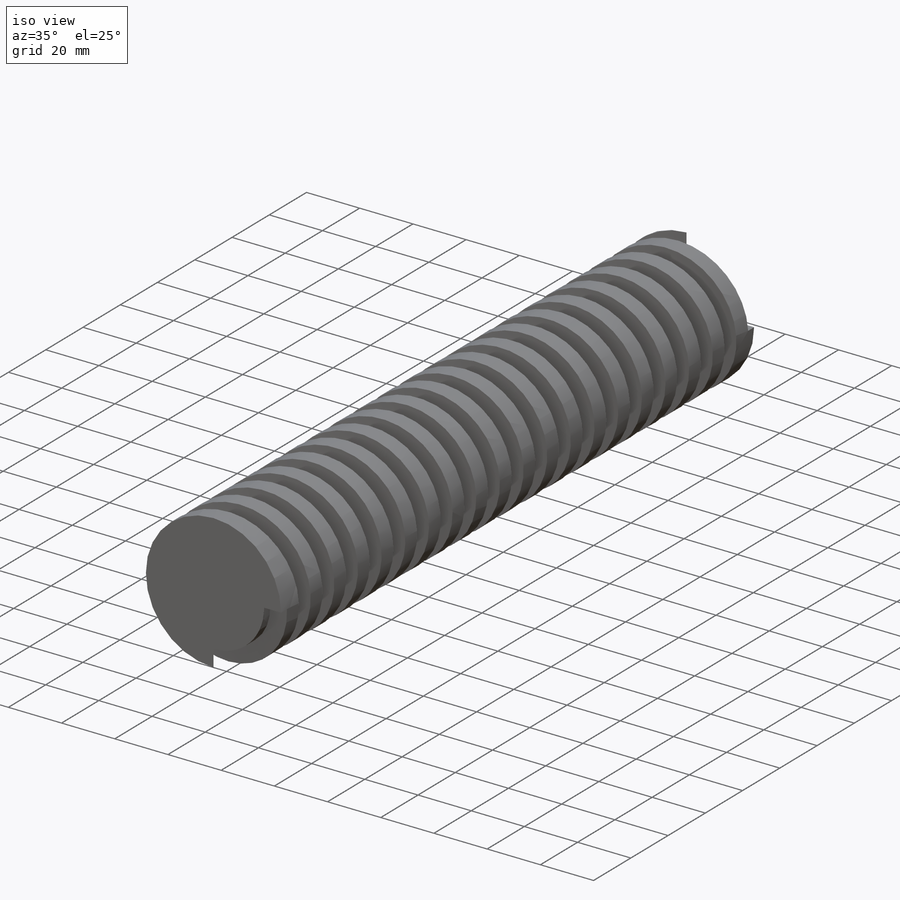
[diagram: iso view]
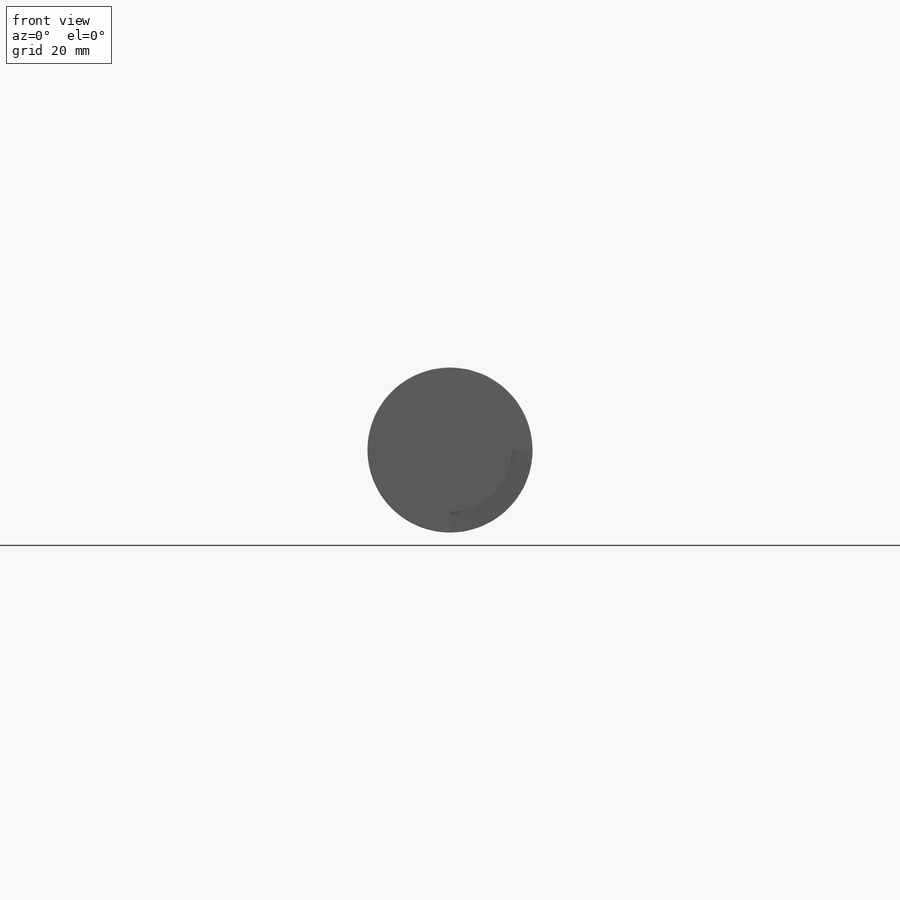
[diagram: front view]
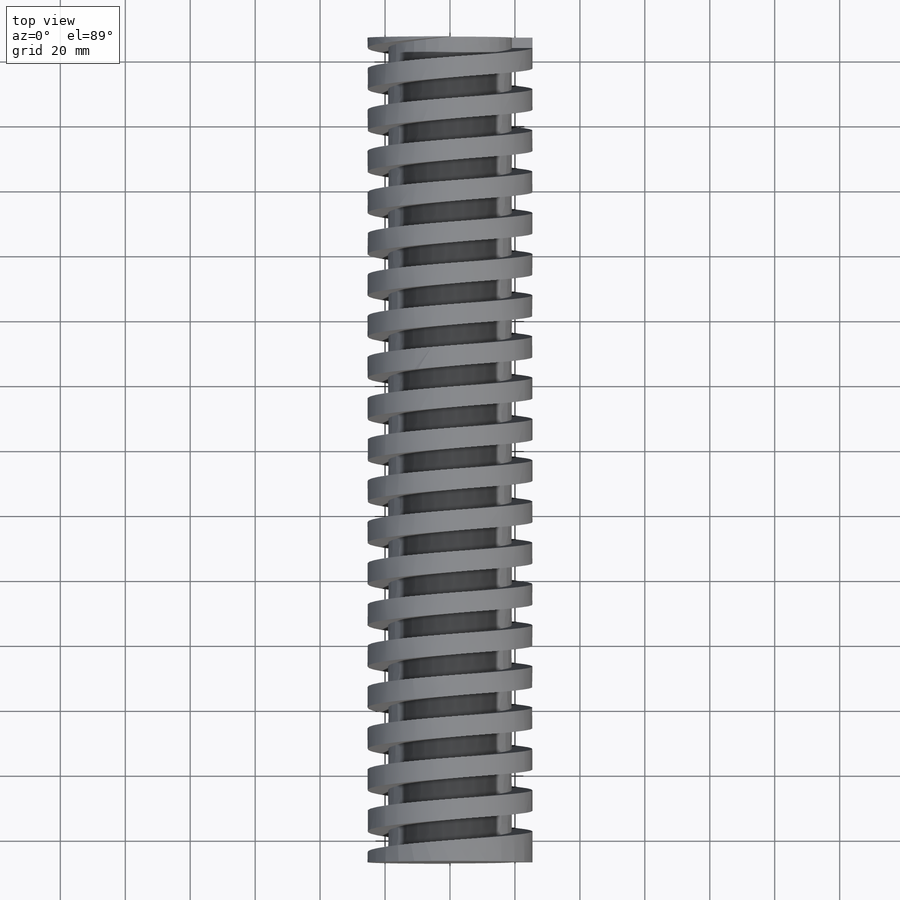
[diagram: top view]
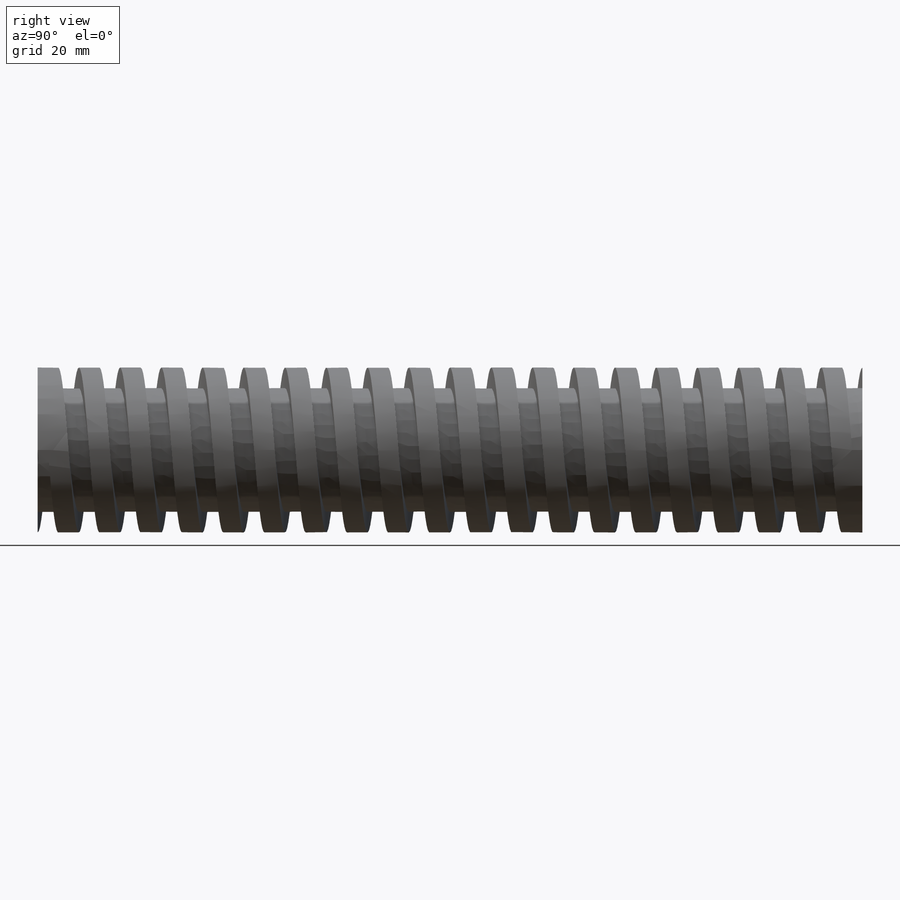
[diagram: right view]
SOLIDWORKS PART (.sldprt)
format: sldprt  version: not decoded by parser v0  size: 687,104 bytes
history: native  units: mm
features: sketch x5, helix x2, sweep x2, material x1, extrude x1 (+16 scaffold rows collapsed)
feature tree (27):
  scaffold x16  (default folders/planes/origin — collapsed)
  material  "Material <not specified>"
  sketch  "Sketch1"  dims[D1=50.8mm]
  extrude  "Boss-Extrude1"  Depth=254mm
  sketch  "Sketch2"
  helix  "Helix/Spiral1"  Pitch=254mm
  sketch  "Sketch3"  dims[D1=6.35mm D2=6.35mm]
  sweep  "Cut-Sweep1"
  sketch  "Sketch4"  dims[D1=50.8mm]
  helix  "Helix/Spiral2"  Pitch=254mm
  sketch  "Sketch5"  dims[D1=6.35mm D2=12.7mm D3=12.7mm]
  sweep  "Cut-Sweep2"
decode coverage: 7 of 10 modeling features carry decoded parameters
note: suppression state not decoded; provenance and decode notes live in map.json
